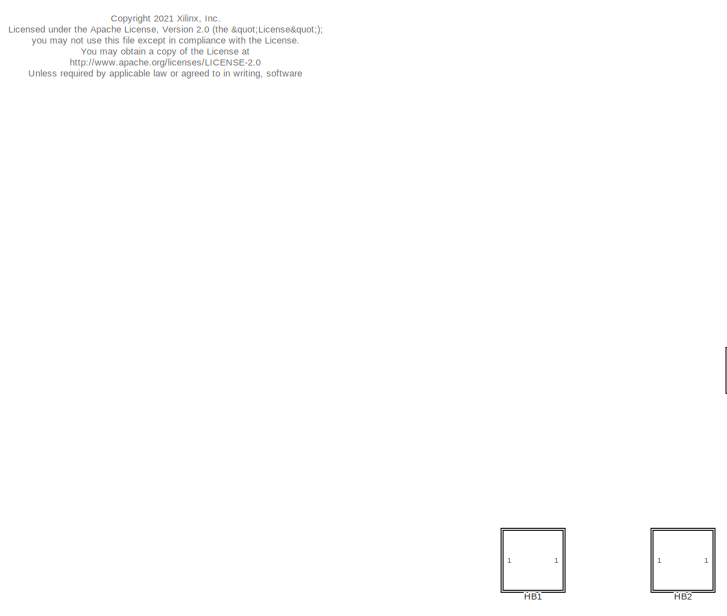
[diagram: root canvas - part 1/2, left side, full height]
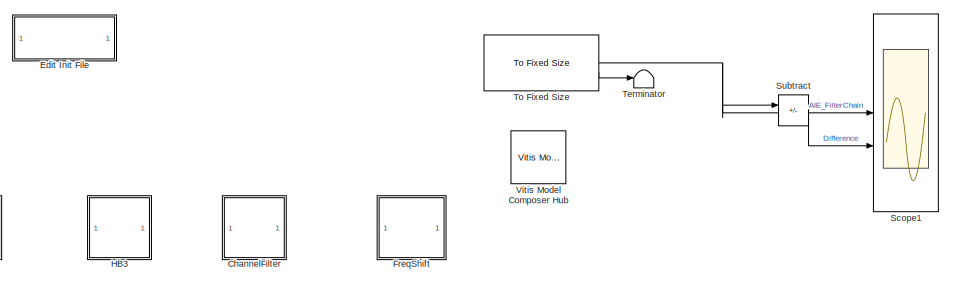
[diagram: root canvas - part 2/2, bottom right region]
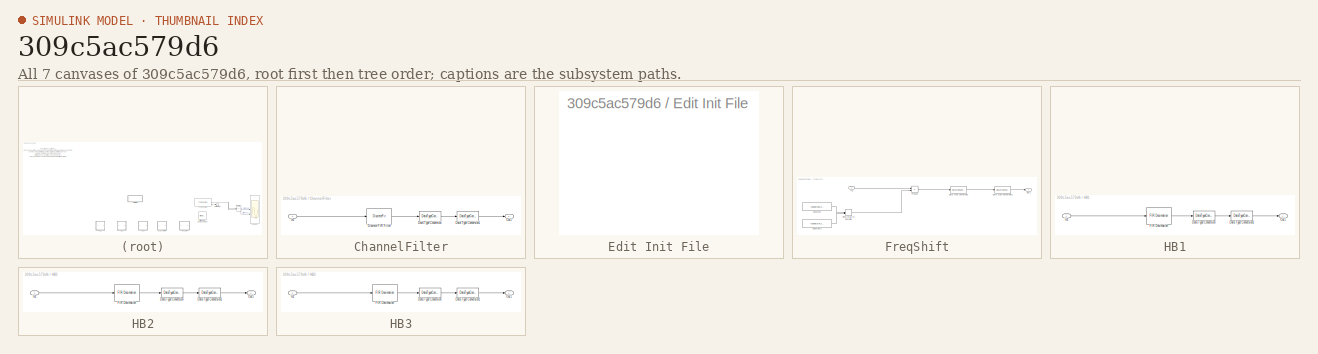
[diagram: thumbnail index - all 7 canvases of the model, root first then tree order]
MODEL slx_309c5ac579d6
KIND model
CONFIG AbsTol = auto
CONFIG EnableMultiTasking = off
CONFIG FixedStep = auto
CONFIG InitFcn = CreateFilter;\n
CONFIG MaxStep = auto
CONFIG MinStep = auto
CONFIG PreLoadFcn = CreateFilter;
CONFIG RelTol = 1e-3
CONFIG SampleTimeConstraint = Unconstrained
CONFIG SolverName = VariableStepAuto
CONFIG StartTime = 0.0
CONFIG StopTime = 5000
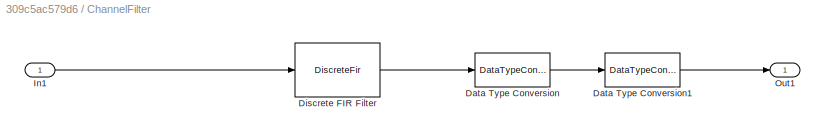
BLOCK [SubSystem] ChannelFilter
BLOCK [DataTypeConversion] ChannelFilter/Data Type Conversion
  ConvertRealWorld = Stored Integer (SI)
  OutDataTypeStr = fixdt(1,32,Shift)
  RndMeth = Floor
  SaturateOnIntegerOverflow = off
BLOCK [DataTypeConversion] ChannelFilter/Data Type Conversion1
  OutDataTypeStr = int16
  RndMeth = Floor
BLOCK [DiscreteFir] ChannelFilter/Discrete FIR Filter
  Coefficients = COEFFS
  InputPortMap = u0
  InputProcessing = Columns as channels (frame based)
  OutputPortMap = o0
BLOCK [Inport] ChannelFilter/In1
BLOCK [Outport] ChannelFilter/Out1
BLOCK [SubSystem] Edit Init File
  OpenFcn = edit('CreateFilter.m');
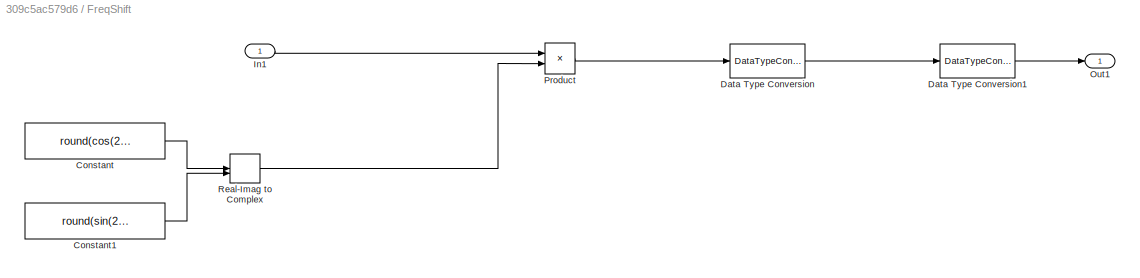
BLOCK [SubSystem] FreqShift
BLOCK [Constant] FreqShift/Constant
  SampleTime = 2048
  Value = round(cos(2*pi*[0:255]/8)*16384)
BLOCK [Constant] FreqShift/Constant1
  SampleTime = 2048
  Value = round(sin(2*pi*[0:255]/8)*16384)
BLOCK [DataTypeConversion] FreqShift/Data Type Conversion
  ConvertRealWorld = Stored Integer (SI)
  OutDataTypeStr = fixdt(1,32,14)
  RndMeth = Floor
  SaturateOnIntegerOverflow = off
BLOCK [DataTypeConversion] FreqShift/Data Type Conversion1
  OutDataTypeStr = int16
  RndMeth = Floor
BLOCK [Inport] FreqShift/In1
BLOCK [Outport] FreqShift/Out1
BLOCK [Product] FreqShift/Product
BLOCK [RealImagToComplex] FreqShift/Real-Imag to Complex
BLOCK [SubSystem] HB1
BLOCK [DataTypeConversion] HB1/Data Type Conversion
  ConvertRealWorld = Stored Integer (SI)
  OutDataTypeStr = fixdt(1,32,Shift)
  RndMeth = Floor
  SaturateOnIntegerOverflow = off
BLOCK [DataTypeConversion] HB1/Data Type Conversion1
  OutDataTypeStr = int16
  RndMeth = Floor
BLOCK [Reference] HB1/FIR Decimation  REF=dspmlti4/FIR
Decimation
  SourceBlock = dspmlti4/FIR\nDecimation
  SourceType = FIR Decimation
  UserDataPersistent = on
BLOCK [Inport] HB1/In1
BLOCK [Outport] HB1/Out1
BLOCK [SubSystem] HB2
BLOCK [DataTypeConversion] HB2/Data Type Conversion
  ConvertRealWorld = Stored Integer (SI)
  OutDataTypeStr = fixdt(1,32,Shift)
  RndMeth = Floor
  SaturateOnIntegerOverflow = off
BLOCK [DataTypeConversion] HB2/Data Type Conversion1
  OutDataTypeStr = int16
  RndMeth = Floor
BLOCK [Reference] HB2/FIR Decimation  REF=dspmlti4/FIR
Decimation
  SourceBlock = dspmlti4/FIR\nDecimation
  SourceType = FIR Decimation
  UserDataPersistent = on
BLOCK [Inport] HB2/In1
BLOCK [Outport] HB2/Out1
BLOCK [SubSystem] HB3
BLOCK [DataTypeConversion] HB3/Data Type Conversion
  ConvertRealWorld = Stored Integer (SI)
  OutDataTypeStr = fixdt(1,32,Shift)
  RndMeth = Floor
  SaturateOnIntegerOverflow = off
BLOCK [DataTypeConversion] HB3/Data Type Conversion1
  OutDataTypeStr = int16
  RndMeth = Floor
BLOCK [Reference] HB3/FIR Decimation  REF=dspmlti4/FIR
Decimation
  SourceBlock = dspmlti4/FIR\nDecimation
  SourceType = FIR Decimation
  UserDataPersistent = on
BLOCK [Inport] HB3/In1
BLOCK [Outport] HB3/Out1
BLOCK [Scope] Scope1
  Floating = off
  NumInputPorts = 3
  ScopeSpecificationString = Simulink.scopes.TimeScopeBlockCfg('CurrentConfiguration', extmgr.ConfigurationSet(extmgr.Configuration('Core','General UI',true),extmgr.Configuration('Core','Source UI',true),extmgr.Configuration('Sources','WiredSimulink',true,'DataLoggingVariableName','ScopeData1'),extmgr.Configuration('Visuals','Time Domain',true,'InputProcessing','FrameProcessing','SerializedDisplays',{struct('MinYLimReal','-22...<+2986ch>
BLOCK [Sum] Subtract
  IconShape = rectangular
  Inputs = +-
BLOCK [Terminator] Terminator
BLOCK [Reference] To Fixed Size  REF=aieUtilities/To Fixed Size
  SourceBlock = aieUtilities/To Fixed Size
  SourceType = To Fixed Size
BLOCK [Reference] Vitis Model Composer Hub  REF=vmcUtilities/Vitis Model Composer Hub
  SourceBlock = vmcUtilities/Vitis Model Composer Hub
  SourceType = VMC Hub
  Tag = genX
  UserDataPersistent = on
ANNOTATION (root): <copyright redacted>
LINE ChannelFilter/Data Type Conversion1:1 -> ChannelFilter/Out1:1
LINE ChannelFilter/Data Type Conversion:1 -> ChannelFilter/Data Type Conversion1:1
LINE ChannelFilter/Discrete FIR Filter:1 -> ChannelFilter/Data Type Conversion:1
LINE ChannelFilter/In1:1 -> ChannelFilter/Discrete FIR Filter:1
LINE FreqShift/Constant1:1 -> FreqShift/Real-Imag to Complex:2
LINE FreqShift/Constant:1 -> FreqShift/Real-Imag to Complex:1
LINE FreqShift/Data Type Conversion1:1 -> FreqShift/Out1:1
LINE FreqShift/Data Type Conversion:1 -> FreqShift/Data Type Conversion1:1
LINE FreqShift/In1:1 -> FreqShift/Product:1
LINE FreqShift/Product:1 -> FreqShift/Data Type Conversion:1
LINE FreqShift/Real-Imag to Complex:1 -> FreqShift/Product:2
LINE HB1/Data Type Conversion1:1 -> HB1/Out1:1
LINE HB1/Data Type Conversion:1 -> HB1/Data Type Conversion1:1
LINE HB1/FIR Decimation:1 -> HB1/Data Type Conversion:1
LINE HB1/In1:1 -> HB1/FIR Decimation:1
LINE HB2/Data Type Conversion1:1 -> HB2/Out1:1
LINE HB2/Data Type Conversion:1 -> HB2/Data Type Conversion1:1
LINE HB2/FIR Decimation:1 -> HB2/Data Type Conversion:1
LINE HB2/In1:1 -> HB2/FIR Decimation:1
LINE HB3/Data Type Conversion1:1 -> HB3/Out1:1
LINE HB3/Data Type Conversion:1 -> HB3/Data Type Conversion1:1
LINE HB3/FIR Decimation:1 -> HB3/Data Type Conversion:1
LINE HB3/In1:1 -> HB3/FIR Decimation:1
LINE Subtract:1 -> Scope1:2
NET To Fixed Size:1 -> Scope1:1, Subtract:1
LINE To Fixed Size:2 -> Terminator:1
note: NET lines group one-source signal fan-out (src -> all destinations, sorted); 1:1 wires keep LINE
